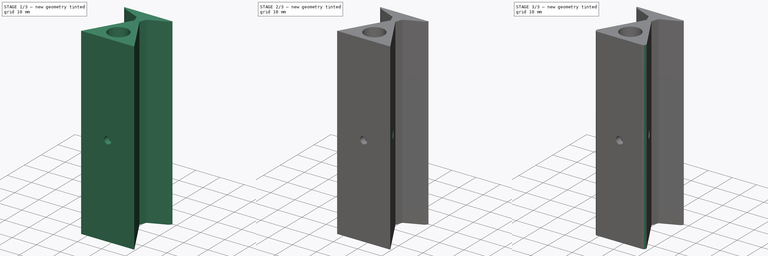
[diagram: build sequence overview — one tinted view per stage of 3, left to right]
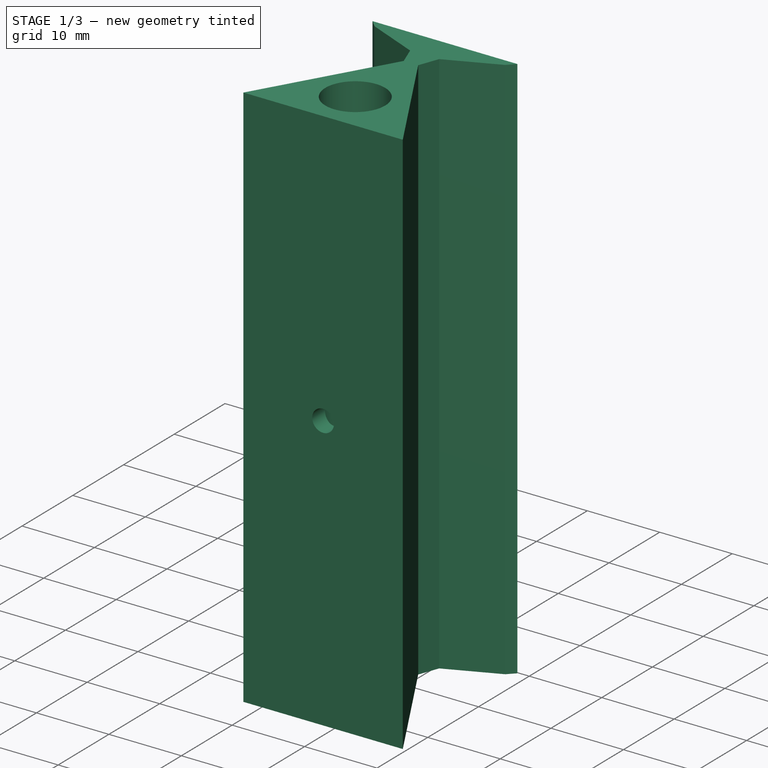
[diagram: stage 1 of 3 — iso view after this stage's code; geometry added in this stage tinted green]
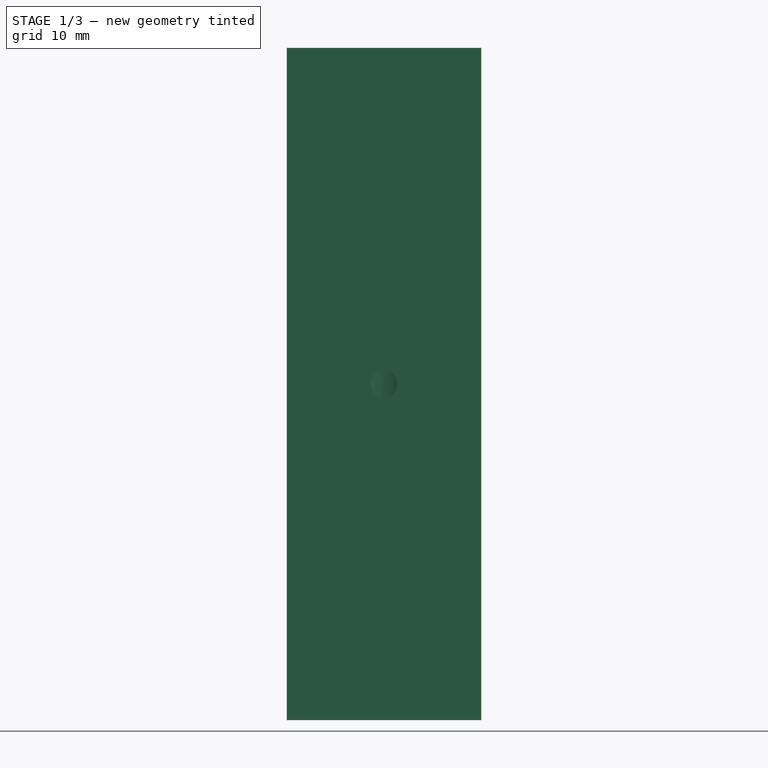
[diagram: stage 1 of 3 — front view after this stage's code; geometry added in this stage tinted green]
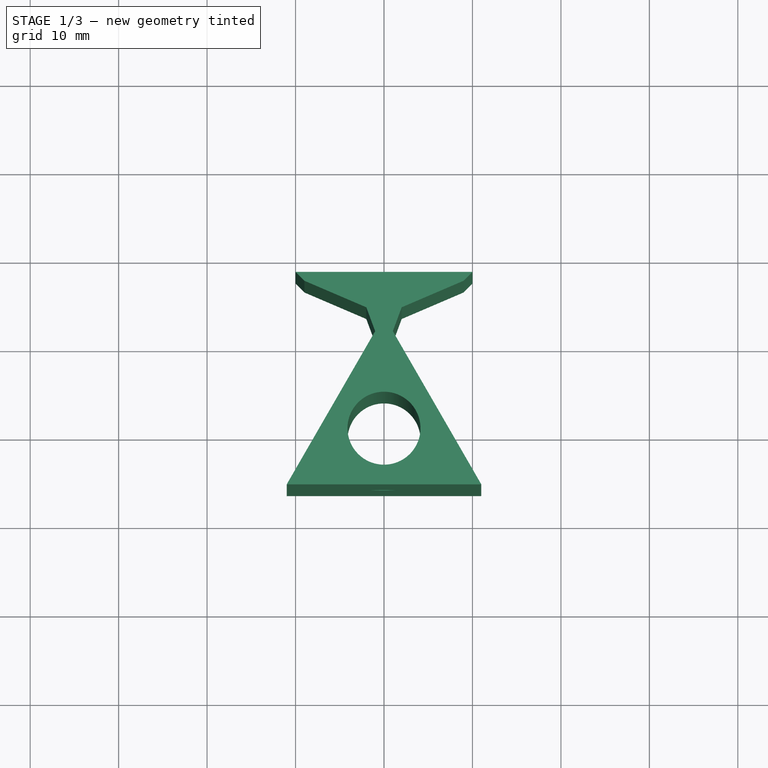
[diagram: stage 1 of 3 — top view after this stage's code; geometry added in this stage tinted green]
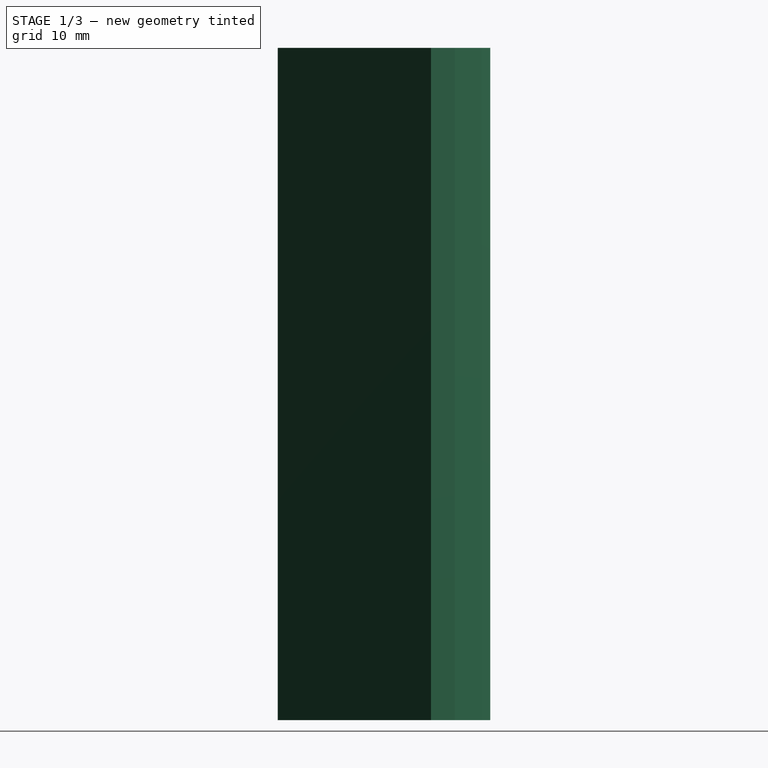
[diagram: stage 1 of 3 — right view after this stage's code; geometry added in this stage tinted green]
FCSTD DOCUMENT  (FreeCAD 0.18R16110 (Git))
Label: Montador_Porta_Pilas
License: All rights reserved
LicenseURL: http://en.wikipedia.org/wiki/All_rights_reserved
objects: Sketcher::SketchObject×2, PartDesign::Fillet×2, PartDesign::Pad×1, PartDesign::Pocket×1, PartDesign::PolarPattern×1, PartDesign::Body×1
note: 10 computed .brp shape members not serialized (recipe doc carries the construction recipe); baked Part::Feature solids carry a one-line shape summary decoded from their .brp

FEATURE [Sketcher::SketchObject] Sketch
  MapMode = 5
  Support = -> [XY_Plane]
  sketch-geometry (16):
    g0: LineSegment StartX=-11 StartY=-6.35085 StartZ=0 EndX=-1 EndY=10.9697 EndZ=0
    g1: LineSegment StartX=1 StartY=10.9697 StartZ=0 EndX=11 EndY=-6.35085 EndZ=0
    g2: LineSegment StartX=11 StartY=-6.35085 StartZ=0 EndX=-11 EndY=-6.35085 EndZ=0
    g3: LineSegment [constr] StartX=0 StartY=17.6697 StartZ=0 EndX=0 EndY=-6.35085 EndZ=0
    g4: LineSegment [constr] StartX=11 StartY=-6.35085 StartZ=0 EndX=-5.5 EndY=3.17543 EndZ=0
    g5: LineSegment [constr] StartX=-11 StartY=-6.35085 StartZ=0 EndX=5.5 EndY=3.17543 EndZ=0
    g6: Circle CenterX=0 CenterY=0 CenterZ=0 NormalX=0 NormalY=0 NormalZ=1 AngleXU=0 Radius=4.125
    g7: LineSegment StartX=-1 StartY=10.9697 StartZ=0 EndX=-2 EndY=13.6697 EndZ=0
    g8: LineSegment StartX=-2 StartY=13.6697 StartZ=0 EndX=-9 EndY=16.6697 EndZ=0
    g9: LineSegment StartX=-9 StartY=16.6697 StartZ=0 EndX=-10 EndY=17.6697 EndZ=0
    g10: LineSegment StartX=-10 StartY=17.6697 StartZ=0 EndX=10 EndY=17.6697 EndZ=0
    g11: LineSegment StartX=10 StartY=17.6697 StartZ=0 EndX=9 EndY=16.6697 EndZ=0
    g12: LineSegment StartX=9 StartY=16.6697 StartZ=0 EndX=2 EndY=13.6697 EndZ=0
    g13: LineSegment StartX=2 StartY=13.6697 StartZ=0 EndX=1 EndY=10.9697 EndZ=0
    g14: LineSegment [constr] StartX=-1 StartY=10.9697 StartZ=0 EndX=0 EndY=12.7017 EndZ=0
    g15: LineSegment [constr] StartX=0 StartY=12.7017 StartZ=0 EndX=1 EndY=10.9697 EndZ=0
  constraints (42):
    c: Coincident(g1,g2)
    c: Coincident(g2,g0)
    c: Distance(g2) = 22
    c: Distance(g0) = 20
    c: PointOnObject(g3,g2)
    c: Vertical(g3)
    c: Coincident(g4,g1)
    c: PointOnObject(g4,g0)
    c: Coincident(g5,g0)
    c: PointOnObject(g5,g1)
    c: Perpendicular(g1,g5)
    c: Perpendicular(g0,g4)
    c: PointOnObject(g-1,g5)
    c: Coincident(g6,g-1)
    c: Diameter(g6) = 8.25
    c: Symmetric(g0,g1,g-2)
    c: Coincident(g0,g7)
    c: Coincident(g7,g8)
    c: Coincident(g8,g9)
    c: Coincident(g9,g10)
    c: Coincident(g10,g11)
    c: Coincident(g11,g12)
    c: Coincident(g12,g13)
    c: Coincident(g13,g1)
    c: Symmetric(g7,g12,g-2)
    c: Symmetric(g8,g11,g-2)
    c: Symmetric(g9,g10,g-2)
    c: Symmetric(g0,g1,g3)
    c: DistanceX(g10,g10) = 20
    c: DistanceX(g9,g8) = 1
    c: DistanceY(g8,g9) = 1
    c: DistanceY(g7,g8) = 3
    c: DistanceX(g8,g7) = 7
    c: DistanceY(g1,g10) = 6.7
    c: PointOnObject(g3,g10)
    c: Coincident(g14,g0)
    c: PointOnObject(g14,g3)
    c: Parallel(g14,g0)
    c: Coincident(g15,g14)
    c: Coincident(g15,g1)
    c: Distance(g14,g1) = 22
    c: PointOnObject(g14,g-2)
FEATURE [PartDesign::Pad] Pad
  Length = 76
  Length2 = 100
  Profile = -> Sketch
  Type = 0
FEATURE [Sketcher::SketchObject] Sketch001
  MapMode = 5
  Placement = pos=(0,-6.35085,0) rot=(1,0,0;1.5708rad)
  sketch-geometry (1):
    g0: Circle CenterX=-6e-16 CenterY=38 CenterZ=0 NormalX=0 NormalY=0 NormalZ=1 AngleXU=0 Radius=1.5
  constraints (1):
    c: Diameter(g0) = 3
FEATURE [PartDesign::Pocket] Pocket
  BaseFeature = -> Pad
  Length = 5
  Length2 = 100
  Profile = -> Sketch001
  Type = 0
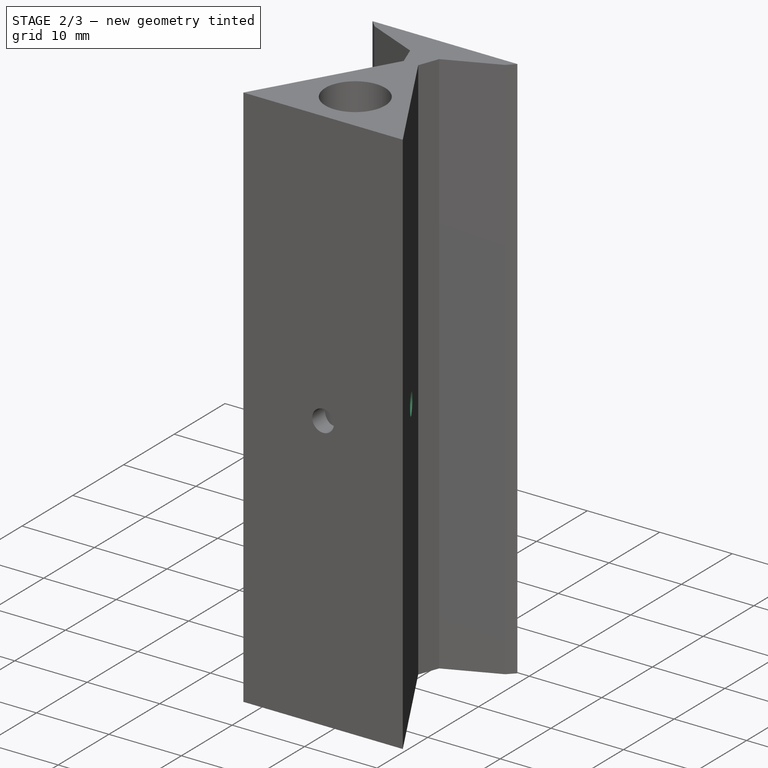
[diagram: stage 2 of 3 — iso view after this stage's code; geometry added in this stage tinted green]
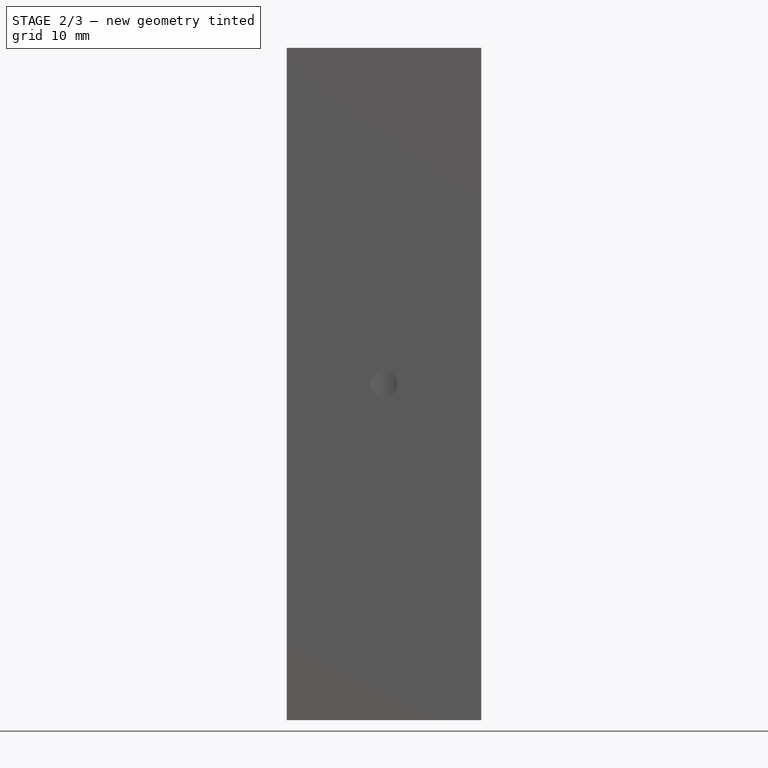
[diagram: stage 2 of 3 — front view after this stage's code; geometry added in this stage tinted green]
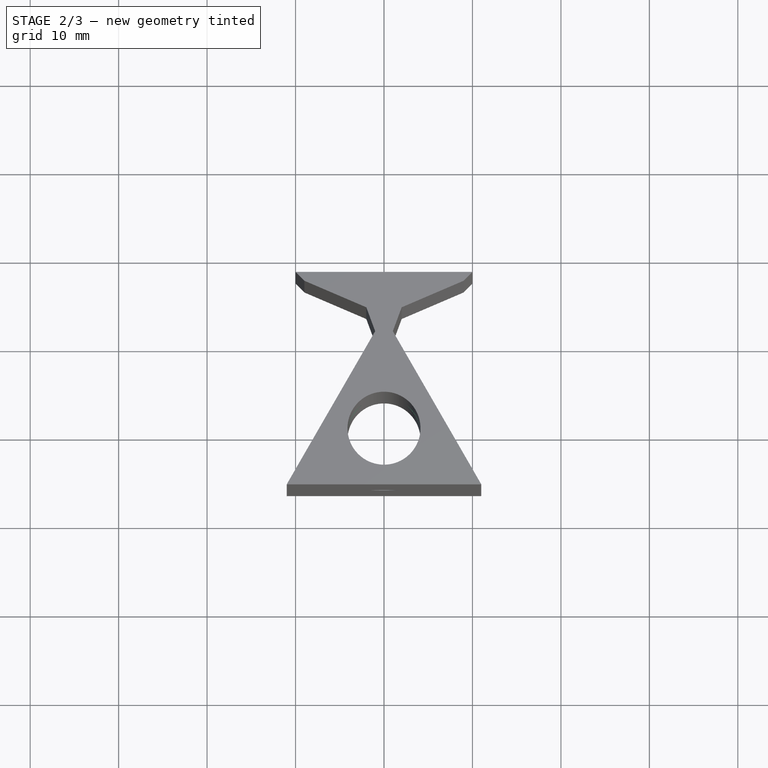
[diagram: stage 2 of 3 — top view after this stage's code; geometry added in this stage tinted green]
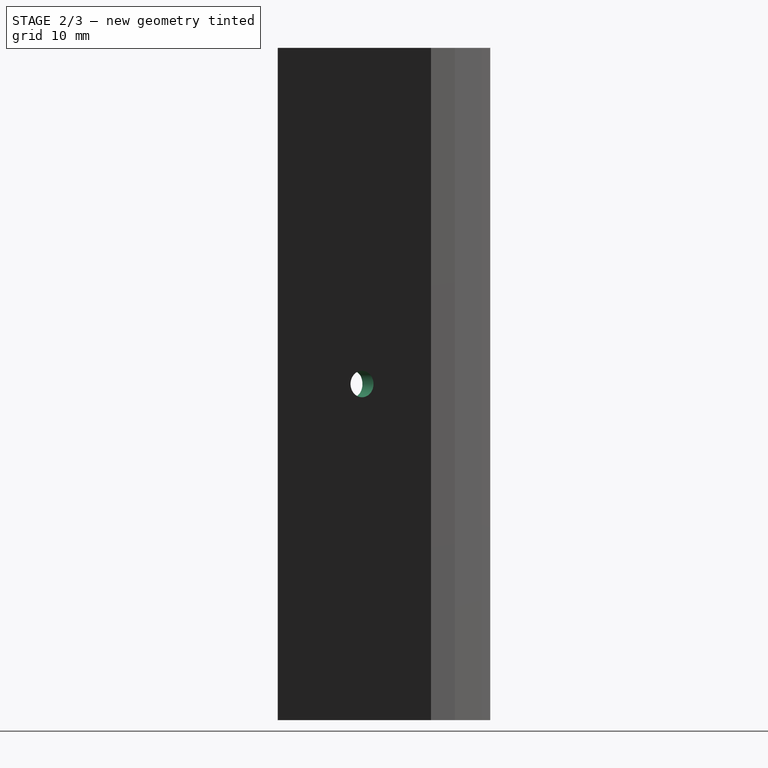
[diagram: stage 2 of 3 — right view after this stage's code; geometry added in this stage tinted green]
FEATURE [PartDesign::PolarPattern] PolarPattern
  Angle = 360
  Axis = -> Z_Axis
  BaseFeature = -> Pocket
  Occurrences = 3
  Originals = -> [Pocket]
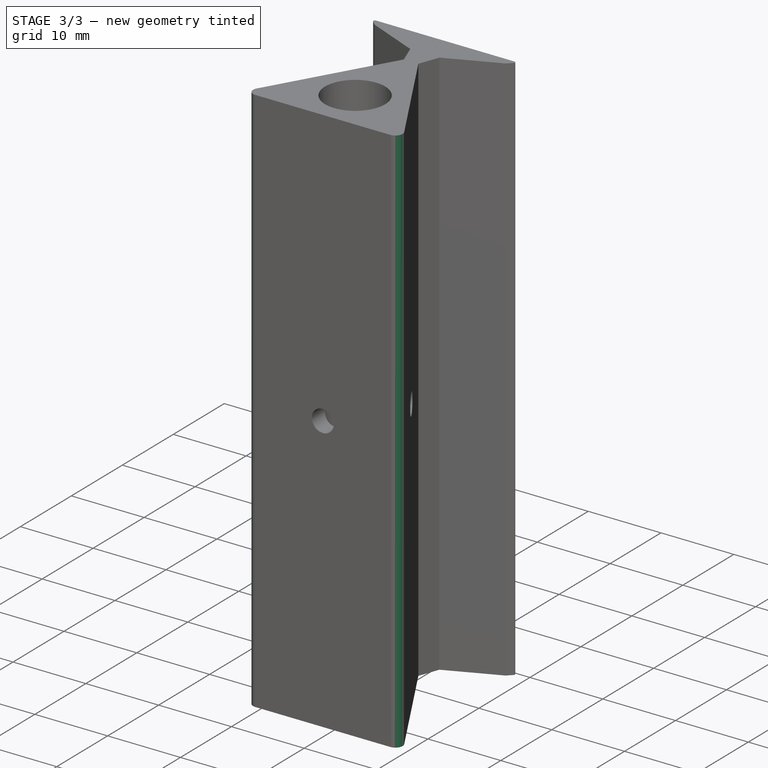
[diagram: stage 3 of 3 — iso view after this stage's code; geometry added in this stage tinted green]
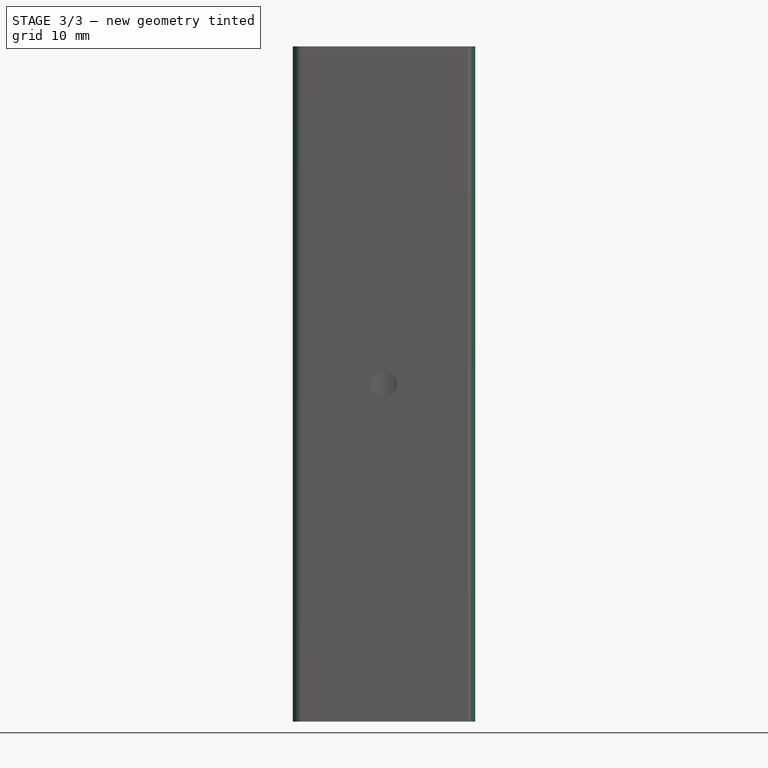
[diagram: stage 3 of 3 — front view after this stage's code; geometry added in this stage tinted green]
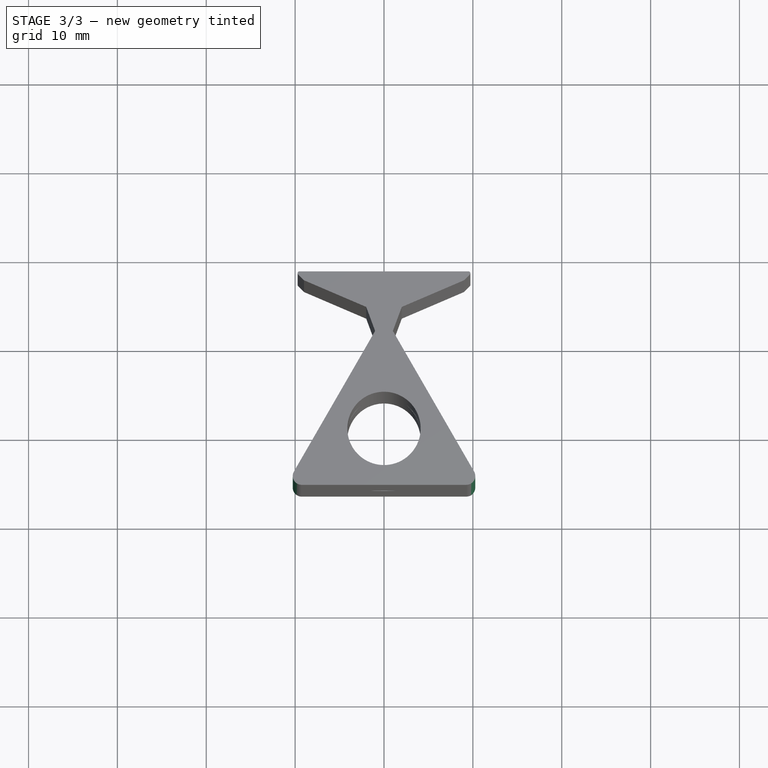
[diagram: stage 3 of 3 — top view after this stage's code; geometry added in this stage tinted green]
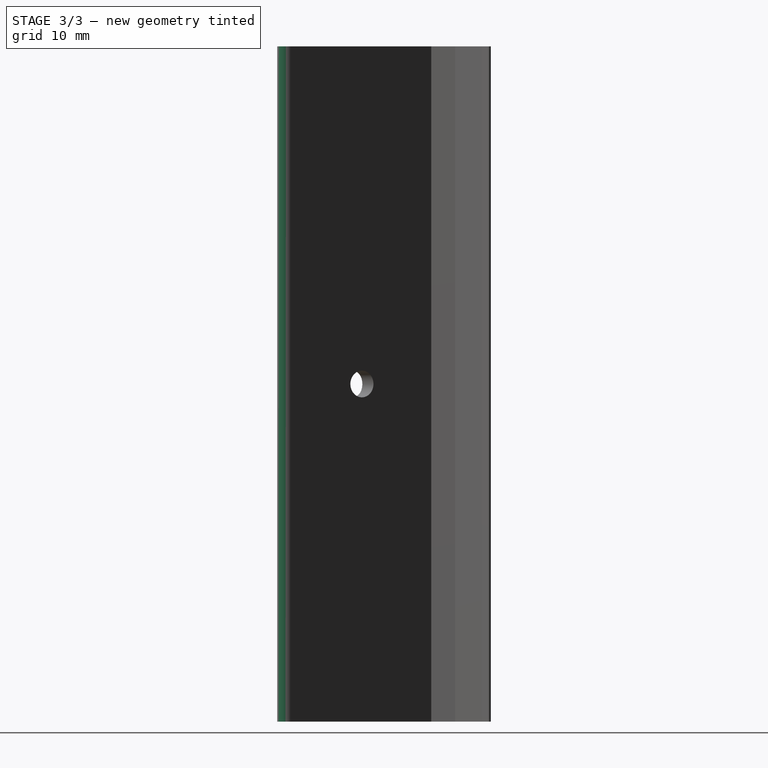
[diagram: stage 3 of 3 — right view after this stage's code; geometry added in this stage tinted green]
FEATURE [PartDesign::Fillet] Fillet
  Base = -> PolarPattern [Edge6,Edge1]
  BaseFeature = -> PolarPattern
  Radius = 1
FEATURE [PartDesign::Fillet] Fillet001
  Base = -> Fillet [Edge41,Edge38]
  BaseFeature = -> Fillet
  Radius = 0.2
FEATURE [PartDesign::Body] Body
  Group = -> [Sketch,Pad,Sketch001,Pocket,PolarPattern,Fillet,Fillet001]
  Origin = -> Origin
  Tip = -> Fillet001
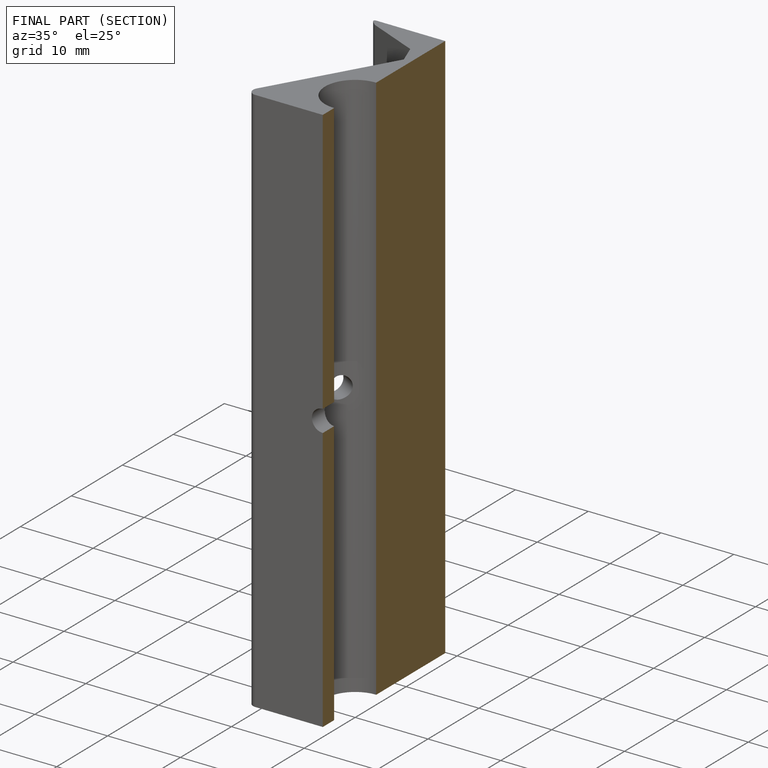
[diagram: finished part — half-section view (interior)]
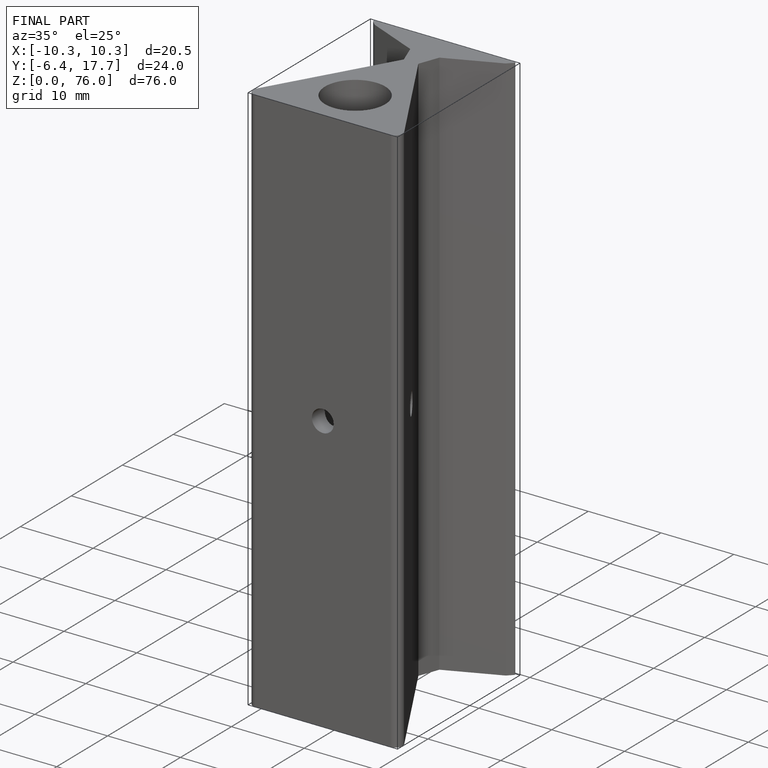
[diagram: finished part — iso view with bounding-box wireframe]
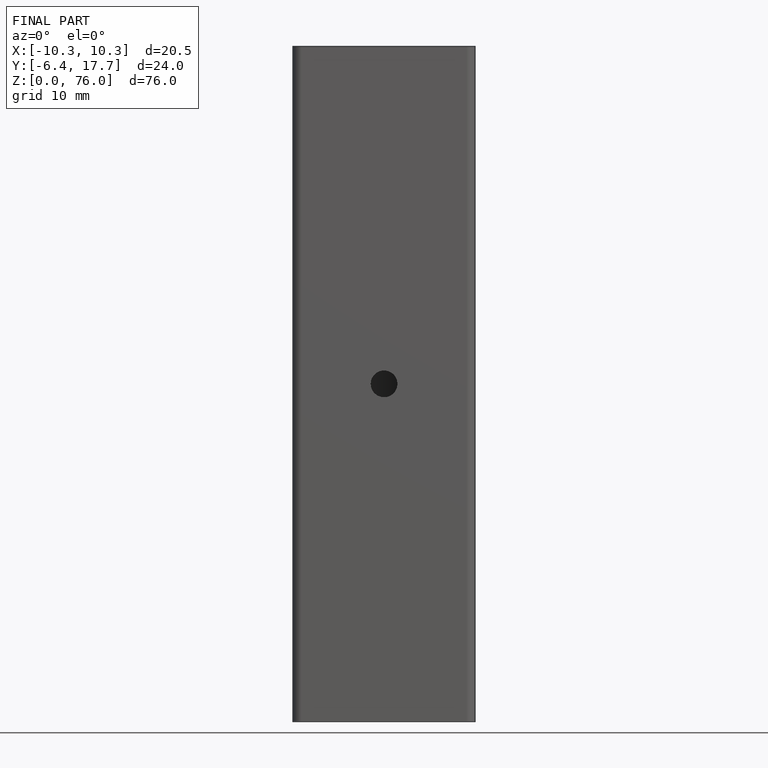
[diagram: finished part — front view with bounding-box wireframe]
